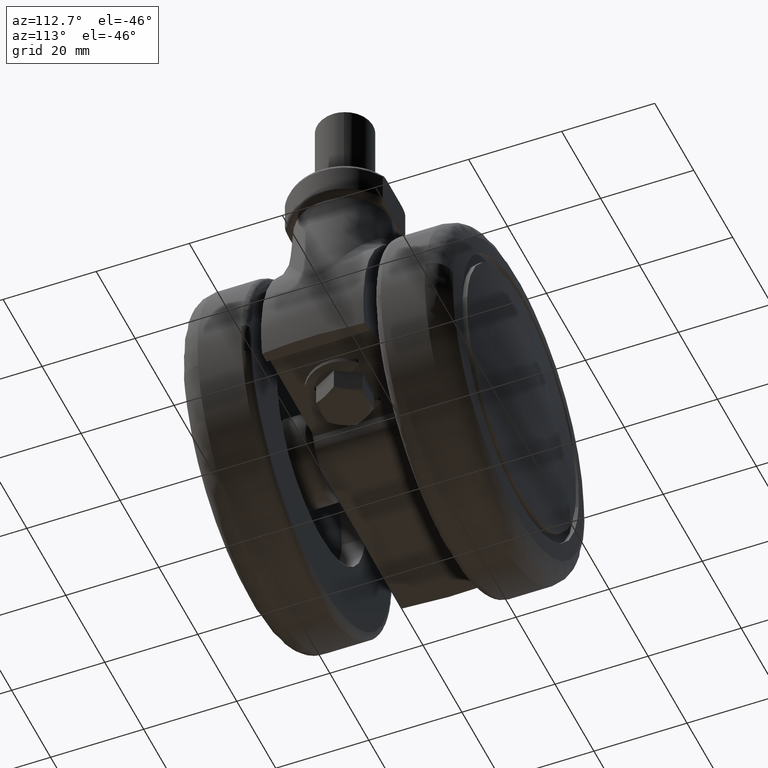
[diagram: clean part render]
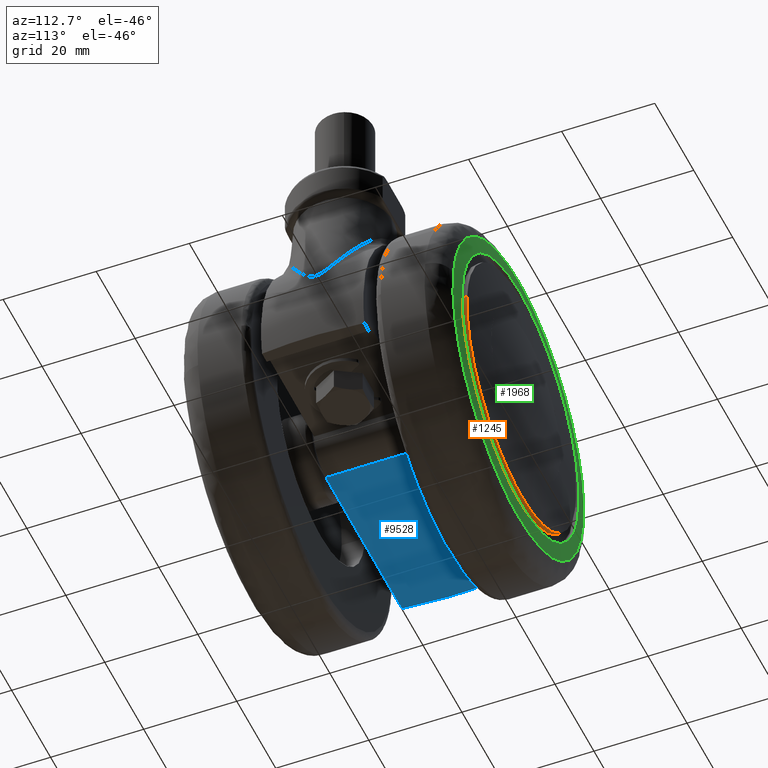
[diagram: same view with three faces highlighted in distinct colors, each labeled with its STEP entity id]
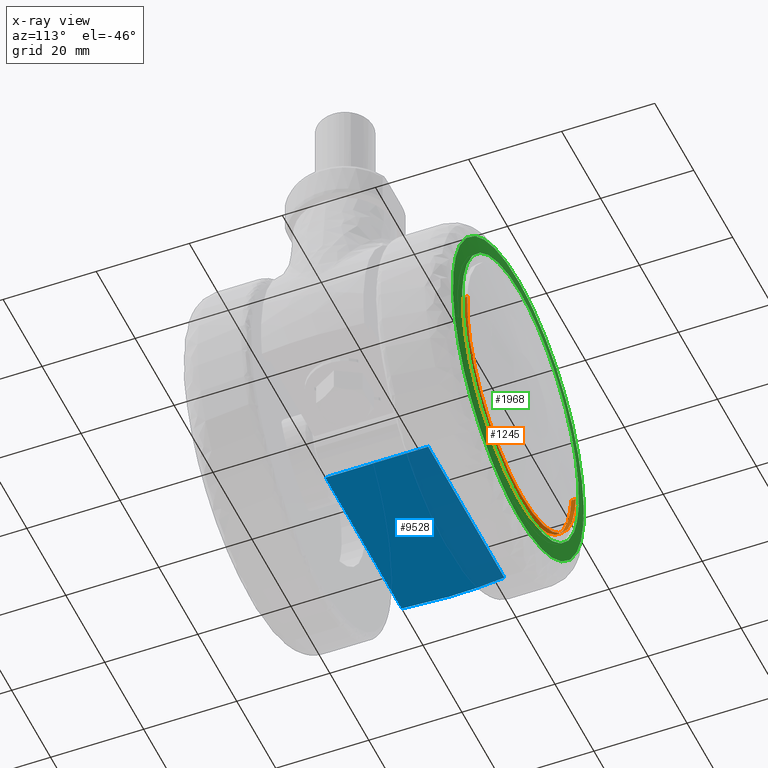
[diagram: x-ray of the same camera — body ghosted, the three highlighted faces saturated]
A machine part, auxiliary view with three faces highlighted in distinct colors.
The next image is the same camera in x-ray (body ghosted, the three faces saturated) — at least one of them is partly hidden behind the body in this view.
Their STEP definitions:

[orange] entity #1245 — the highlighted face is a freeform B-spline surface patch.
#1084=CARTESIAN_POINT('',(27.913688161340410,28.548061364879160,2.196818888792396));
#1085=VERTEX_POINT('',#1084);
#1099=CARTESIAN_POINT('',(27.913688126577910,29.554418667084001,2.196819330506232));
#1100=VERTEX_POINT('',#1099);
#1101=CARTESIAN_POINT('',(27.913688126577910,29.554418667084001,2.196819330506232));
#1102=CARTESIAN_POINT('',(27.913688161340410,28.548061364879160,2.196818888792396));
#1103=QUASI_UNIFORM_CURVE('',1,(#1101,#1102),.UNSPECIFIED.,.F.,.U.);
#1104=EDGE_CURVE('',#1100,#1085,#1103,.T.);
#1121=CARTESIAN_POINT('',(-27.913688126577910,29.554418667084001,-2.196819330506235));
#1122=VERTEX_POINT('',#1121);
#1138=CARTESIAN_POINT('',(-27.913688161340410,28.548061364879160,-2.196818888792399));
#1139=VERTEX_POINT('',#1138);
#1140=CARTESIAN_POINT('',(-27.913688126577910,29.554418667084001,-2.196819330506235));
#1141=CARTESIAN_POINT('',(-27.913688161340410,28.548061364879160,-2.196818888792399));
#1142=QUASI_UNIFORM_CURVE('',1,(#1140,#1141),.UNSPECIFIED.,.F.,.U.);
#1143=EDGE_CURVE('',#1122,#1139,#1142,.T.);
#1163=CARTESIAN_POINT('',(-27.913685344527568,29.579577599639070,-2.196854680379675));
#1164=CARTESIAN_POINT('',(-25.716830664147892,29.579577599639073,-30.110540024907248));
#1165=CARTESIAN_POINT('',(2.196854680379675,29.579577599639070,-27.913685344527568));
#1166=CARTESIAN_POINT('',(30.110540024907248,29.579577599639073,-25.716830664147892));
#1167=CARTESIAN_POINT('',(27.913685344527568,29.579577599639070,2.196854680379675));
#1168=CARTESIAN_POINT('',(-27.913685344527568,28.522273459012400,-2.196854680379675));
#1169=CARTESIAN_POINT('',(-25.716830664147892,28.522273459012393,-30.110540024907248));
#1170=CARTESIAN_POINT('',(2.196854680379675,28.522273459012400,-27.913685344527568));
#1171=CARTESIAN_POINT('',(30.110540024907248,28.522273459012393,-25.716830664147892));
#1172=CARTESIAN_POINT('',(27.913685344527568,28.522273459012400,2.196854680379675));
#1180=(BOUNDED_SURFACE()B_SPLINE_SURFACE(2,1,((#1163,#1168),(#1164,#1169),(#1165,#1170),(#1166,#1171),(#1167,#1172)),.UNSPECIFIED.,.F.,.F.,.U.)B_SPLINE_SURFACE_WITH_KNOTS((3,2,3),(2,2),(0.0,46.391918985786631,92.783837971573263),(0.0,1.0),.UNSPECIFIED.)GEOMETRIC_REPRESENTATION_ITEM()RATIONAL_B_SPLINE_SURFACE(((1.0,1.0),(0.707106781186548,0.707106781186548),(1.0,1.0),(0.707106781186548,0.707106781186548),(1.0,1.0)))REPRESENTATION_ITEM('')SURFACE());
#1181=CARTESIAN_POINT('',(0.0,28.548061364881349,-28.0));
#1182=VERTEX_POINT('',#1181);
#1183=CARTESIAN_POINT('',(27.913688161340414,28.548061364879164,2.196818888792395));
#1184=CARTESIAN_POINT('',(28.0,28.548061364881356,1.100105017374653));
#1185=CARTESIAN_POINT('',(28.0,28.548061364881349,-3.496014E-015));
#1186=CARTESIAN_POINT('',(28.000000000000004,28.548061364881342,-28.000000000000004));
#1187=CARTESIAN_POINT('',(0.0,28.548061364881349,-28.0));
#1195=(BOUNDED_CURVE()B_SPLINE_CURVE(2,(#1183,#1184,#1185,#1186,#1187),.UNSPECIFIED.,.F.,.U.)B_SPLINE_CURVE_WITH_KNOTS((3,2,3),(0.236331520437331,0.250000000000000,0.500000000000000),.UNSPECIFIED.)CURVE()GEOMETRIC_REPRESENTATION_ITEM()RATIONAL_B_SPLINE_CURVE((0.969723814887625,0.983986380098416,1.0,0.707106781186547,1.0))REPRESENTATION_ITEM(''));
#1196=EDGE_CURVE('',#1085,#1182,#1195,.T.);
#1197=ORIENTED_EDGE('',*,*,#1196,.T.);
#1198=CARTESIAN_POINT('',(0.0,28.548061364881349,-28.0));
#1199=CARTESIAN_POINT('',(-25.882967056778721,28.548061364881349,-28.000000000000011));
#1200=CARTESIAN_POINT('',(-27.913688161340414,28.548061364879164,-2.196818888792400));
#1208=(BOUNDED_CURVE()B_SPLINE_CURVE(2,(#1198,#1199,#1200),.UNSPECIFIED.,.F.,.U.)B_SPLINE_CURVE_WITH_KNOTS((3,3),(0.500000000000000,0.736331520437331),.UNSPECIFIED.)CURVE()GEOMETRIC_REPRESENTATION_ITEM()RATIONAL_B_SPLINE_CURVE((1.0,0.723120401088132,0.969723814887625))REPRESENTATION_ITEM(''));
#1209=EDGE_CURVE('',#1182,#1139,#1208,.T.);
#1210=ORIENTED_EDGE('',*,*,#1209,.T.);
#1211=ORIENTED_EDGE('',*,*,#1143,.F.);
#1212=CARTESIAN_POINT('',(0.0,29.554418667084001,-28.0));
#1213=VERTEX_POINT('',#1212);
#1214=CARTESIAN_POINT('',(0.0,29.554418667084001,-28.0));
#1215=CARTESIAN_POINT('',(-25.882966645933159,29.554418667084001,-28.000000000000007));
#1216=CARTESIAN_POINT('',(-27.913688126577910,29.554418667084001,-2.196819330506235));
#1224=(BOUNDED_CURVE()B_SPLINE_CURVE(2,(#1214,#1215,#1216),.UNSPECIFIED.,.F.,.U.)B_SPLINE_CURVE_WITH_KNOTS((3,3),(0.500000000000000,0.736331517724662),.UNSPECIFIED.)CURVE()GEOMETRIC_REPRESENTATION_ITEM()RATIONAL_B_SPLINE_CURVE((1.0,0.723120404266221,0.969723809226480))REPRESENTATION_ITEM(''));
#1225=EDGE_CURVE('',#1213,#1122,#1224,.T.);
#1226=ORIENTED_EDGE('',*,*,#1225,.F.);
#1227=CARTESIAN_POINT('',(27.913688126577910,29.554418667084001,2.196819330506232));
#1228=CARTESIAN_POINT('',(28.000000000000004,29.554418667084001,1.100105239256443));
#1229=CARTESIAN_POINT('',(28.0,29.554418667084001,-3.619253E-015));
#1230=CARTESIAN_POINT('',(28.000000000000004,29.554418667084001,-28.000000000000004));
#1231=CARTESIAN_POINT('',(0.0,29.554418667084001,-28.0));
#1239=(BOUNDED_CURVE()B_SPLINE_CURVE(2,(#1227,#1228,#1229,#1230,#1231),.UNSPECIFIED.,.F.,.U.)B_SPLINE_CURVE_WITH_KNOTS((3,2,3),(0.236331517724662,0.250000000000000,0.500000000000000),.UNSPECIFIED.)CURVE()GEOMETRIC_REPRESENTATION_ITEM()RATIONAL_B_SPLINE_CURVE((0.969723809226480,0.983986376920326,1.0,0.707106781186547,1.0))REPRESENTATION_ITEM(''));
#1240=EDGE_CURVE('',#1100,#1213,#1239,.T.);
#1241=ORIENTED_EDGE('',*,*,#1240,.F.);
#1242=ORIENTED_EDGE('',*,*,#1104,.T.);
#1243=EDGE_LOOP('',(#1197,#1210,#1211,#1226,#1241,#1242));
#1244=FACE_OUTER_BOUND('',#1243,.T.);
#1245=ADVANCED_FACE('',(#1244),#1180,.T.);

[blue] entity #9528 — the highlighted face is a freeform B-spline surface patch.
#9337=CARTESIAN_POINT('',(3.600000000000400,11.000000373584060,-10.0));
#9338=VERTEX_POINT('',#9337);
#9361=CARTESIAN_POINT('',(3.600000000000400,-11.0,-10.0));
#9362=VERTEX_POINT('',#9361);
#9376=CARTESIAN_POINT('',(3.600000000000400,-11.0,-10.0));
#9377=CARTESIAN_POINT('',(3.600000000000400,11.000000373584060,-10.0));
#9378=QUASI_UNIFORM_CURVE('',1,(#9376,#9377),.UNSPECIFIED.,.F.,.U.);
#9379=EDGE_CURVE('',#9362,#9338,#9378,.T.);
#9487=CARTESIAN_POINT('',(5.585116855055482,-12.098899897420800,-10.0));
#9488=CARTESIAN_POINT('',(-38.127198643401698,-12.098899897420800,-10.0));
#9489=CARTESIAN_POINT('',(5.585116855055482,12.098899287528210,-10.0));
#9490=CARTESIAN_POINT('',(-38.127198643401698,12.098899287528210,-10.0));
#9491=B_SPLINE_SURFACE_WITH_KNOTS('',1,1,((#9487,#9489),(#9488,#9490)),.UNSPECIFIED.,.F.,.F.,.U.,(2,2),(2,2),(0.0,43.712315498457180),(0.0,24.197799184949009),.UNSPECIFIED.);
#9492=CARTESIAN_POINT('',(-35.512042467496002,-11.0,-10.0));
#9493=VERTEX_POINT('',#9492);
#9494=CARTESIAN_POINT('',(-35.512042381589737,11.0,-10.0));
#9495=VERTEX_POINT('',#9494);
#9496=CARTESIAN_POINT('',(-35.512042467496009,-10.999999999999980,-10.0));
#9497=CARTESIAN_POINT('',(-35.722096988441528,-9.173054248229072,-10.0));
#9498=CARTESIAN_POINT('',(-35.879753233056597,-7.340362461635415,-10.0));
#9499=CARTESIAN_POINT('',(-36.037466574129184,-4.582686691157622,-9.999999999999998));
#9500=CARTESIAN_POINT('',(-36.076900044553547,-3.662020750382056,-9.999999999999998));
#9501=CARTESIAN_POINT('',(-36.116239311995969,-2.278849356673319,-10.0));
#9502=CARTESIAN_POINT('',(-36.130955343875449,-1.586720444074463,-9.999999999999998));
#9503=CARTESIAN_POINT('',(-36.139423116973433,-0.778282562026476,-9.999999999999993));
#9504=CARTESIAN_POINT('',(-36.141183633090328,-0.431604279640513,-10.0));
#9505=CARTESIAN_POINT('',(-36.141941615547573,-0.200439839291833,-9.999999999999996));
#9506=CARTESIAN_POINT('',(-36.142112622947081,-0.084648974540542,-10.0));
#9507=CARTESIAN_POINT('',(-36.141487291769003,1.876749695081560,-10.0));
#9508=CARTESIAN_POINT('',(-36.087916772033857,3.713734955211065,-10.0));
#9509=CARTESIAN_POINT('',(-35.877284262818407,7.370053165830350,-10.0));
#9510=CARTESIAN_POINT('',(-35.720219278112189,9.189385605431104,-10.0));
#9511=CARTESIAN_POINT('',(-35.512042381589737,11.0,-10.0));
#9512=B_SPLINE_CURVE_WITH_KNOTS('',3,(#9496,#9497,#9498,#9499,#9500,#9501,#9502,#9503,#9504,#9505,#9506,#9507,#9508,#9509,#9510,#9511),.UNSPECIFIED.,.F.,.U.,(4,2,2,1,1,2,2,2,4),(0.0,0.250000000000000,0.375000000000000,0.437500000000000,0.468750000000000,0.484375000000000,0.500000000000000,0.750000000000000,1.0),.UNSPECIFIED.);
#9513=EDGE_CURVE('',#9493,#9495,#9512,.T.);
#9514=ORIENTED_EDGE('',*,*,#9513,.T.);
#9515=CARTESIAN_POINT('',(3.600000000000400,11.000000373584060,-10.0));
#9516=CARTESIAN_POINT('',(-35.512042381589737,11.0,-10.0));
#9517=QUASI_UNIFORM_CURVE('',1,(#9515,#9516),.UNSPECIFIED.,.F.,.U.);
#9518=EDGE_CURVE('',#9338,#9495,#9517,.T.);
#9519=ORIENTED_EDGE('',*,*,#9518,.F.);
#9520=ORIENTED_EDGE('',*,*,#9379,.F.);
#9521=CARTESIAN_POINT('',(3.600000000000400,-11.0,-10.0));
#9522=CARTESIAN_POINT('',(-35.512042467496002,-11.0,-10.0));
#9523=QUASI_UNIFORM_CURVE('',1,(#9521,#9522),.UNSPECIFIED.,.F.,.U.);
#9524=EDGE_CURVE('',#9362,#9493,#9523,.T.);
#9525=ORIENTED_EDGE('',*,*,#9524,.T.);
#9526=EDGE_LOOP('',(#9514,#9519,#9520,#9525));
#9527=FACE_OUTER_BOUND('',#9526,.T.);
#9528=ADVANCED_FACE('',(#9527),#9491,.T.);

[green] entity #1968 — the highlighted face is a freeform B-spline surface patch.
#900=CARTESIAN_POINT('',(0.0,29.320839919817200,30.0));
#901=VERTEX_POINT('',#900);
#902=CARTESIAN_POINT('',(29.907520011229899,29.320839919817200,2.353772881542101));
#903=VERTEX_POINT('',#902);
#904=CARTESIAN_POINT('',(0.0,29.320839919817200,30.0));
#905=CARTESIAN_POINT('',(27.731714731689419,29.320839919817207,30.000000000000004));
#906=CARTESIAN_POINT('',(29.907520011229899,29.320839919817200,2.353772881542102));
#914=(BOUNDED_CURVE()B_SPLINE_CURVE(2,(#904,#905,#906),.UNSPECIFIED.,.F.,.U.)B_SPLINE_CURVE_WITH_KNOTS((3,3),(0.0,0.236331300521492),.UNSPECIFIED.)CURVE()GEOMETRIC_REPRESENTATION_ITEM()RATIONAL_B_SPLINE_CURVE((1.0,0.723120658735563,0.969723355939594))REPRESENTATION_ITEM(''));
#915=EDGE_CURVE('',#901,#903,#914,.T.);
#956=CARTESIAN_POINT('',(-29.907520011229899,29.320839919817200,-2.353772881542105));
#957=VERTEX_POINT('',#956);
#963=CARTESIAN_POINT('',(-29.907520011229899,29.320839919817200,-2.353772881542105));
#964=CARTESIAN_POINT('',(-30.000000000000004,29.320839919817200,-1.178703219981881));
#965=CARTESIAN_POINT('',(-30.0,29.320839919817200,-3.590649E-015));
#966=CARTESIAN_POINT('',(-29.999999999999993,29.320839919817207,29.999999999999993));
#967=CARTESIAN_POINT('',(0.0,29.320839919817200,30.0));
#975=(BOUNDED_CURVE()B_SPLINE_CURVE(2,(#963,#964,#965,#966,#967),.UNSPECIFIED.,.F.,.U.)B_SPLINE_CURVE_WITH_KNOTS((3,2,3),(0.736331300521492,0.750000000000000,1.0),.UNSPECIFIED.)CURVE()GEOMETRIC_REPRESENTATION_ITEM()RATIONAL_B_SPLINE_CURVE((0.969723355939594,0.983986122450984,1.0,0.707106781186547,1.0))REPRESENTATION_ITEM(''));
#976=EDGE_CURVE('',#957,#901,#975,.T.);
#999=CARTESIAN_POINT('',(0.0,29.320839919817200,-30.0));
#1000=VERTEX_POINT('',#999);
#1001=CARTESIAN_POINT('',(29.907520011229899,29.320839919817200,2.353772881542102));
#1002=CARTESIAN_POINT('',(30.000000000000004,29.320839919817200,1.178703219981874));
#1003=CARTESIAN_POINT('',(30.0,29.320839919817200,-3.590649E-015));
#1004=CARTESIAN_POINT('',(29.999999999999993,29.320839919817207,-30.000000000000007));
#1005=CARTESIAN_POINT('',(0.0,29.320839919817200,-30.0));
#1013=(BOUNDED_CURVE()B_SPLINE_CURVE(2,(#1001,#1002,#1003,#1004,#1005),.UNSPECIFIED.,.F.,.U.)B_SPLINE_CURVE_WITH_KNOTS((3,2,3),(0.236331300521492,0.250000000000000,0.500000000000000),.UNSPECIFIED.)CURVE()GEOMETRIC_REPRESENTATION_ITEM()RATIONAL_B_SPLINE_CURVE((0.969723355939594,0.983986122450984,1.0,0.707106781186547,1.0))REPRESENTATION_ITEM(''));
#1014=EDGE_CURVE('',#903,#1000,#1013,.T.);
#1016=CARTESIAN_POINT('',(0.0,29.320839919817200,-30.0));
#1017=CARTESIAN_POINT('',(-27.731714731689518,29.320839919817207,-30.0));
#1018=CARTESIAN_POINT('',(-29.907520011229899,29.320839919817200,-2.353772881542105));
#1026=(BOUNDED_CURVE()B_SPLINE_CURVE(2,(#1016,#1017,#1018),.UNSPECIFIED.,.F.,.U.)B_SPLINE_CURVE_WITH_KNOTS((3,3),(0.500000000000000,0.736331300521493),.UNSPECIFIED.)CURVE()GEOMETRIC_REPRESENTATION_ITEM()RATIONAL_B_SPLINE_CURVE((1.0,0.723120658735562,0.969723355939595))REPRESENTATION_ITEM(''));
#1027=EDGE_CURVE('',#1000,#957,#1026,.T.);
#1615=CARTESIAN_POINT('',(33.339904526506977,28.858494214493330,4.211809416987338));
#1616=VERTEX_POINT('',#1615);
#1630=CARTESIAN_POINT('',(0.0,28.858494288676152,33.604889112773037));
#1631=VERTEX_POINT('',#1630);
#1632=CARTESIAN_POINT('',(0.0,28.858494288676152,33.604889112773037));
#1633=CARTESIAN_POINT('',(29.626695034887806,28.858494288676155,33.604889112773058));
#1634=CARTESIAN_POINT('',(33.339904526506984,28.858494214493327,4.211809416987338));
#1642=(BOUNDED_CURVE()B_SPLINE_CURVE(2,(#1632,#1633,#1634),.UNSPECIFIED.,.F.,.U.)B_SPLINE_CURVE_WITH_KNOTS((3,3),(0.0,0.228321256474567),.UNSPECIFIED.)CURVE()GEOMETRIC_REPRESENTATION_ITEM()RATIONAL_B_SPLINE_CURVE((1.0,0.732505009070529,0.953608357578416))REPRESENTATION_ITEM(''));
#1643=EDGE_CURVE('',#1631,#1616,#1642,.T.);
#1645=CARTESIAN_POINT('',(-33.339904526506977,28.858494214493330,-4.211809416987348));
#1646=VERTEX_POINT('',#1645);
#1647=CARTESIAN_POINT('',(-33.339904526506984,28.858494214493323,-4.211809416987348));
#1648=CARTESIAN_POINT('',(-33.604889112773051,28.858494288676148,-2.114240417324270));
#1649=CARTESIAN_POINT('',(-33.604889112773051,28.858494288676152,-3.534030E-015));
#1650=CARTESIAN_POINT('',(-33.604889112773058,28.858494288676152,33.604889112773058));
#1651=CARTESIAN_POINT('',(0.0,28.858494288676152,33.604889112773037));
#1659=(BOUNDED_CURVE()B_SPLINE_CURVE(2,(#1647,#1648,#1649,#1650,#1651),.UNSPECIFIED.,.F.,.U.)B_SPLINE_CURVE_WITH_KNOTS((3,2,3),(0.728321256474567,0.750000000000000,1.0),.UNSPECIFIED.)CURVE()GEOMETRIC_REPRESENTATION_ITEM()RATIONAL_B_SPLINE_CURVE((0.953608357578416,0.974601772116019,1.0,0.707106781186548,1.0))REPRESENTATION_ITEM(''));
#1660=EDGE_CURVE('',#1646,#1631,#1659,.T.);
#1712=CARTESIAN_POINT('',(0.0,28.858494288676152,-33.604889112773058));
#1713=VERTEX_POINT('',#1712);
#1714=CARTESIAN_POINT('',(0.0,28.858494288676152,-33.604889112773058));
#1715=CARTESIAN_POINT('',(-29.626695034887618,28.858494288676152,-33.604889112773058));
#1716=CARTESIAN_POINT('',(-33.339904526506992,28.858494214493327,-4.211809416987348));
#1724=(BOUNDED_CURVE()B_SPLINE_CURVE(2,(#1714,#1715,#1716),.UNSPECIFIED.,.F.,.U.)B_SPLINE_CURVE_WITH_KNOTS((3,3),(0.500000000000000,0.728321256474566),.UNSPECIFIED.)CURVE()GEOMETRIC_REPRESENTATION_ITEM()RATIONAL_B_SPLINE_CURVE((1.0,0.732505009070530,0.953608357578414))REPRESENTATION_ITEM(''));
#1725=EDGE_CURVE('',#1713,#1646,#1724,.T.);
#1727=CARTESIAN_POINT('',(33.339904526506984,28.858494214493323,4.211809416987338));
#1728=CARTESIAN_POINT('',(33.604889112773051,28.858494288676148,2.114240417324262));
#1729=CARTESIAN_POINT('',(33.604889112773051,28.858494288676152,-3.534030E-015));
#1730=CARTESIAN_POINT('',(33.604889112773058,28.858494288676152,-33.604889112773066));
#1731=CARTESIAN_POINT('',(0.0,28.858494288676152,-33.604889112773058));
#1739=(BOUNDED_CURVE()B_SPLINE_CURVE(2,(#1727,#1728,#1729,#1730,#1731),.UNSPECIFIED.,.F.,.U.)B_SPLINE_CURVE_WITH_KNOTS((3,2,3),(0.228321256474567,0.250000000000000,0.500000000000000),.UNSPECIFIED.)CURVE()GEOMETRIC_REPRESENTATION_ITEM()RATIONAL_B_SPLINE_CURVE((0.953608357578416,0.974601772116019,1.0,0.707106781186548,1.0))REPRESENTATION_ITEM(''));
#1740=EDGE_CURVE('',#1616,#1713,#1739,.T.);
#1932=CARTESIAN_POINT('',(-36.722584561607079,25.673254749145158,36.725475736851244));
#1933=CARTESIAN_POINT('',(-18.461978054163865,28.385140950219434,36.926863137587603));
#1934=CARTESIAN_POINT('',(18.461977197817777,28.385140950219434,36.926863137587603));
#1935=CARTESIAN_POINT('',(36.722582876834359,25.673254999351069,36.725475755431781));
#1936=CARTESIAN_POINT('',(-36.923987991515467,28.385570323575013,18.463447511642730));
#1937=CARTESIAN_POINT('',(-18.563790272700778,31.127366999999879,18.565251803023770));
#1938=CARTESIAN_POINT('',(18.563789411632211,31.127366999999879,18.565251803023770));
#1939=CARTESIAN_POINT('',(36.923986297605140,28.385570576532931,18.463447521035178));
#1940=CARTESIAN_POINT('',(-36.923987991515467,28.385570323575013,-18.463450552998516));
#1941=CARTESIAN_POINT('',(-18.563790272700778,31.127366999999879,-18.565254861149072));
#1942=CARTESIAN_POINT('',(18.563789411632211,31.127366999999879,-18.565254861149072));
#1943=CARTESIAN_POINT('',(36.923986297605140,28.385570576532931,-18.463450562390967));
#1944=CARTESIAN_POINT('',(-36.722584495617404,25.673253860457155,-36.725481720389517));
#1945=CARTESIAN_POINT('',(-18.461978020806164,28.385140051758302,-36.926869153573257));
#1946=CARTESIAN_POINT('',(18.461977164460087,28.385140051758302,-36.926869153573257));
#1947=CARTESIAN_POINT('',(36.722582810844685,25.673254110663059,-36.725481738970046));
#1955=(BOUNDED_SURFACE()B_SPLINE_SURFACE(2,2,((#1932,#1936,#1940,#1944),(#1933,#1937,#1941,#1945),(#1934,#1938,#1942,#1946),(#1935,#1939,#1943,#1947)),.UNSPECIFIED.,.F.,.F.,.U.)B_SPLINE_SURFACE_WITH_KNOTS((3,1,3),(3,1,3),(77.774355638885496,113.912011030981300,150.049664746856710),(77.771510515213009,113.912011030981300,150.052517499923710),.UNSPECIFIED.)GEOMETRIC_REPRESENTATION_ITEM()RATIONAL_B_SPLINE_SURFACE(((1.011028526140776,1.005513828948621,1.005513828948621,1.011028527957572),(1.005514697192155,1.0,1.0,1.005514699008951),(1.005514697192155,1.0,1.0,1.005514699008951),(1.011028525629266,1.005513828437111,1.005513828437111,1.011028527446062)))REPRESENTATION_ITEM('')SURFACE());
#1956=ORIENTED_EDGE('',*,*,#1643,.T.);
#1957=ORIENTED_EDGE('',*,*,#1740,.T.);
#1958=ORIENTED_EDGE('',*,*,#1725,.T.);
#1959=ORIENTED_EDGE('',*,*,#1660,.T.);
#1960=EDGE_LOOP('',(#1956,#1957,#1958,#1959));
#1961=FACE_OUTER_BOUND('',#1960,.T.);
#1962=ORIENTED_EDGE('',*,*,#1027,.F.);
#1963=ORIENTED_EDGE('',*,*,#1014,.F.);
#1964=ORIENTED_EDGE('',*,*,#915,.F.);
#1965=ORIENTED_EDGE('',*,*,#976,.F.);
#1966=EDGE_LOOP('',(#1962,#1963,#1964,#1965));
#1967=FACE_BOUND('',#1966,.T.);
#1968=ADVANCED_FACE('',(#1961,#1967),#1955,.T.);